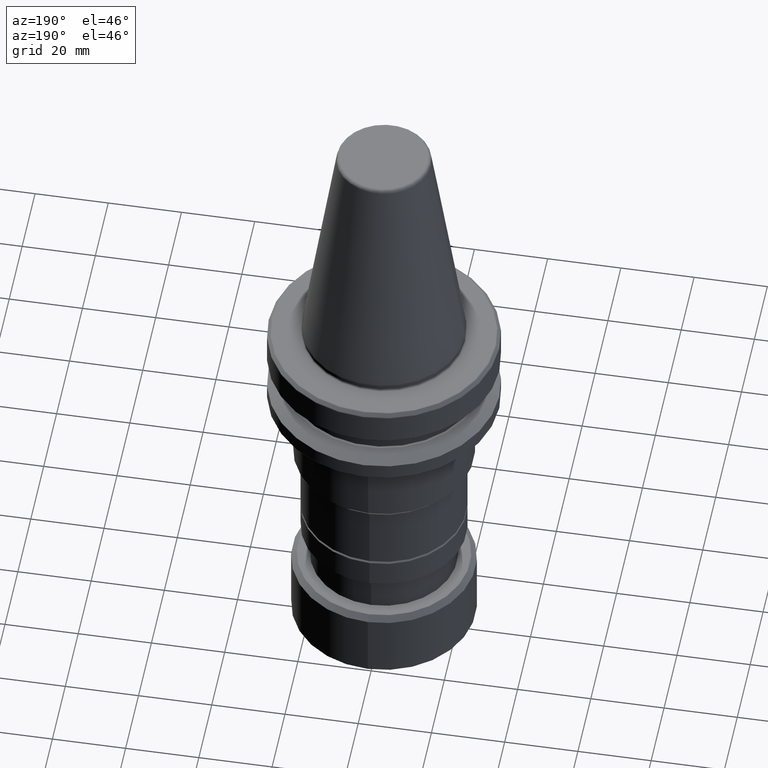
[diagram: clean part render]
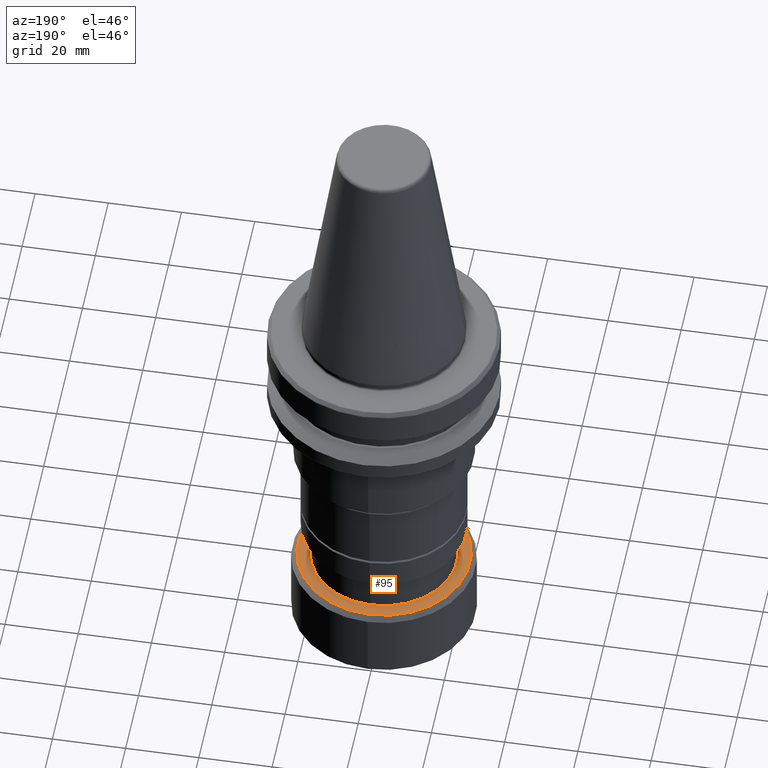
[diagram: same view with one face highlighted and labeled with its STEP entity id]
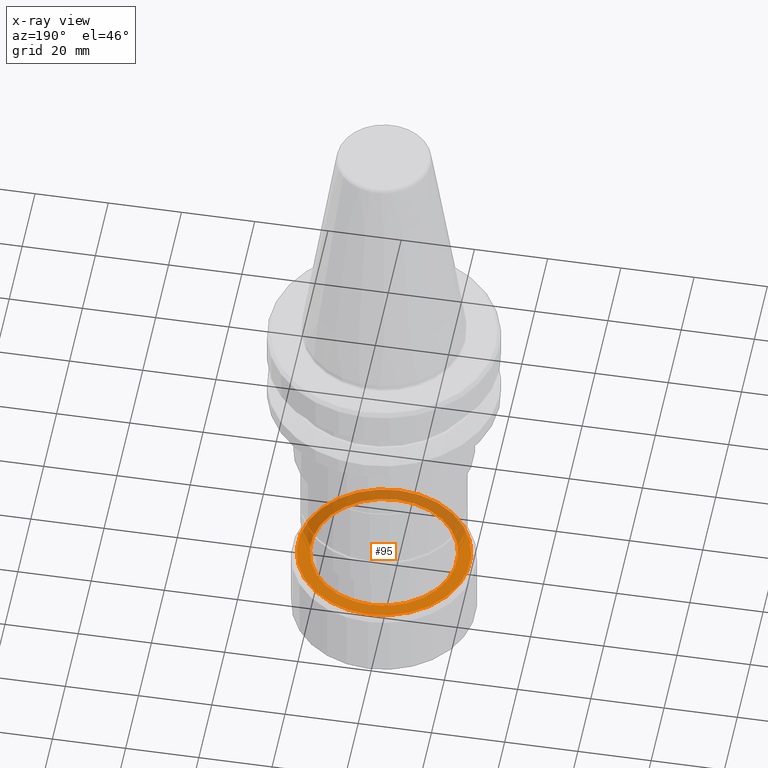
[diagram: x-ray of the same camera — body ghosted, the highlighted face saturated]
A machine part, auxiliary view. The second image highlights one B-rep face of the part: STEP entity #95.
The next image is the same camera in x-ray: the body ghosted, the highlighted face saturated — about 42% of this face is hidden behind the body in this view.
In plain terms, the highlighted planar face has unit normal (0, -0, 1).
Its self-contained STEP definition (entity closure, byte-faithful):
#26 = EDGE_CURVE ( 'NONE', #134, #464, #602, .T. ) ;
#39 = CIRCLE ( 'NONE', #1235, 19.94999999999923200 ) ;
#95 = ADVANCED_FACE ( 'NONE', ( #522, #543 ), #660, .T. ) ;
#110 = ORIENTED_EDGE ( 'NONE', *, *, #498, .F. ) ;
#134 = VERTEX_POINT ( 'NONE', #841 ) ;
#150 = AXIS2_PLACEMENT_3D ( 'NONE', #516, #1369, #380 ) ;
#190 = DIRECTION ( 'NONE',  ( -0.0000000000000000000, -9.289037798285427000E-015, 1.000000000000000000 ) ) ;
#201 = CIRCLE ( 'NONE', #150, 19.94999999999923200 ) ;
#245 = CARTESIAN_POINT ( 'NONE',  ( 0.0000000000000000000, -2.090033504614258800E-013, -87.49999999999957400 ) ) ;
#268 = CIRCLE ( 'NONE', #1173, 23.50000000000028400 ) ;
#274 = DIRECTION ( 'NONE',  ( 0.0000000000000000000, -1.000000000000000000, -9.448706592554410000E-015 ) ) ;
#283 = EDGE_CURVE ( 'NONE', #464, #134, #268, .T. ) ;
#286 = DIRECTION ( 'NONE',  ( 0.0000000000000000000, -1.000000000000000000, -9.448706592554410000E-015 ) ) ;
#327 = CARTESIAN_POINT ( 'NONE',  ( 0.0000000000000000000, -19.94999999999944200, -87.49999999999973000 ) ) ;
#380 = DIRECTION ( 'NONE',  ( 0.0000000000000000000, -1.000000000000000000, -9.043170000079943700E-015 ) ) ;
#464 = VERTEX_POINT ( 'NONE', #1768 ) ;
#468 = DIRECTION ( 'NONE',  ( 0.0000000000000000000, -1.000000000000000000, -9.043170000079943700E-015 ) ) ;
#498 = EDGE_CURVE ( 'NONE', #715, #1165, #39, .T. ) ;
#516 = CARTESIAN_POINT ( 'NONE',  ( 0.0000000000000000000, -2.090033504614261800E-013, -87.49999999999954500 ) ) ;
#522 = FACE_OUTER_BOUND ( 'NONE', #1108, .T. ) ;
#543 = FACE_BOUND ( 'NONE', #1361, .T. ) ;
#546 = AXIS2_PLACEMENT_3D ( 'NONE', #245, #810, #274 ) ;
#564 = EDGE_CURVE ( 'NONE', #1165, #715, #201, .T. ) ;
#602 = CIRCLE ( 'NONE', #546, 23.50000000000028400 ) ;
#603 = CARTESIAN_POINT ( 'NONE',  ( 0.0000000000000000000, -2.090033504614261800E-013, -87.49999999999954500 ) ) ;
#660 = PLANE ( 'NONE',  #1504 ) ;
#663 = DIRECTION ( 'NONE',  ( -0.0000000000000000000, -9.289037798285427000E-015, 1.000000000000000000 ) ) ;
#715 = VERTEX_POINT ( 'NONE', #1888 ) ;
#810 = DIRECTION ( 'NONE',  ( -0.0000000000000000000, -9.289037798285427000E-015, 1.000000000000000000 ) ) ;
#841 = CARTESIAN_POINT ( 'NONE',  ( 0.0000000000000000000, 23.50000000000007800, -87.49999999999936100 ) ) ;
#869 = ORIENTED_EDGE ( 'NONE', *, *, #26, .T. ) ;
#905 = ORIENTED_EDGE ( 'NONE', *, *, #564, .F. ) ;
#1108 = EDGE_LOOP ( 'NONE', ( #869, #1874 ) ) ;
#1165 = VERTEX_POINT ( 'NONE', #327 ) ;
#1173 = AXIS2_PLACEMENT_3D ( 'NONE', #1309, #663, #286 ) ;
#1219 = DIRECTION ( 'NONE',  ( 0.0000000000000000000, -1.000000000000000000, -9.289037798285427000E-015 ) ) ;
#1235 = AXIS2_PLACEMENT_3D ( 'NONE', #603, #190, #468 ) ;
#1304 = DIRECTION ( 'NONE',  ( 0.0000000000000000000, -9.289037798285427000E-015, 1.000000000000000000 ) ) ;
#1309 = CARTESIAN_POINT ( 'NONE',  ( 0.0000000000000000000, -2.090033504614258800E-013, -87.49999999999957400 ) ) ;
#1361 = EDGE_LOOP ( 'NONE', ( #905, #110 ) ) ;
#1369 = DIRECTION ( 'NONE',  ( -0.0000000000000000000, -9.289037798285427000E-015, 1.000000000000000000 ) ) ;
#1504 = AXIS2_PLACEMENT_3D ( 'NONE', #1532, #1304, #1219 ) ;
#1532 = CARTESIAN_POINT ( 'NONE',  ( 0.0000000000000000000, 1.874568199410476300E-027, -87.49999999999957400 ) ) ;
#1768 = CARTESIAN_POINT ( 'NONE',  ( 2.969768487932362800E-015, -23.50000000000049400, -87.49999999999980100 ) ) ;
#1874 = ORIENTED_EDGE ( 'NONE', *, *, #283, .T. ) ;
#1888 = CARTESIAN_POINT ( 'NONE',  ( 2.443170364298883500E-015, 19.94999999999902200, -87.49999999999937500 ) ) ;